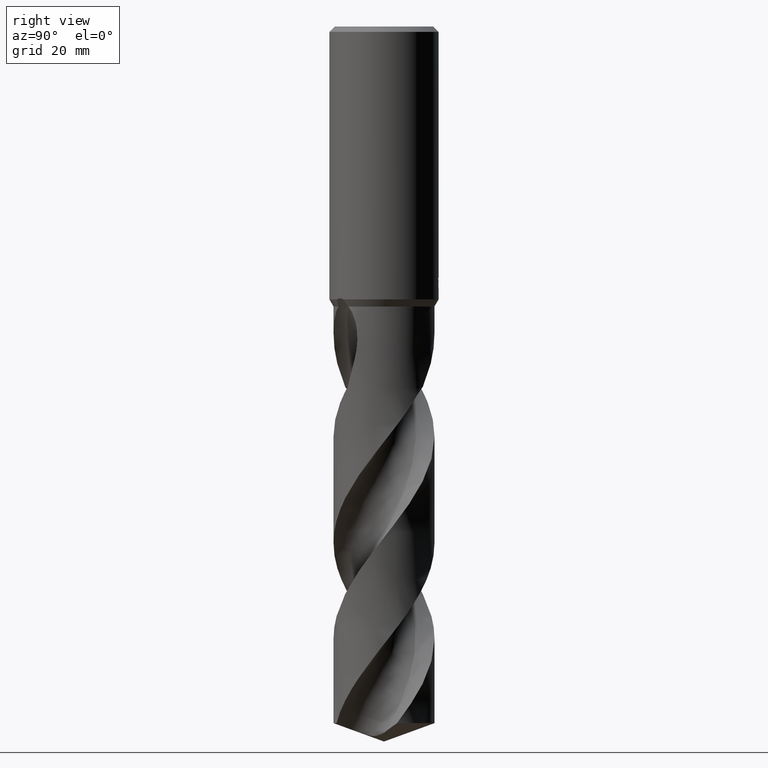
[diagram: clean part render]
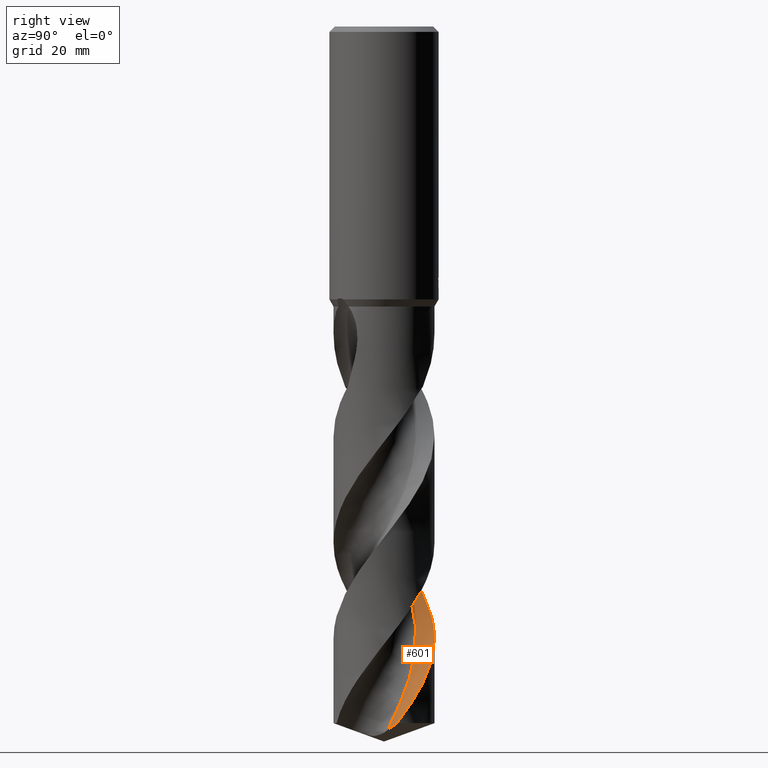
[diagram: same view with one face highlighted and labeled with its STEP entity id]
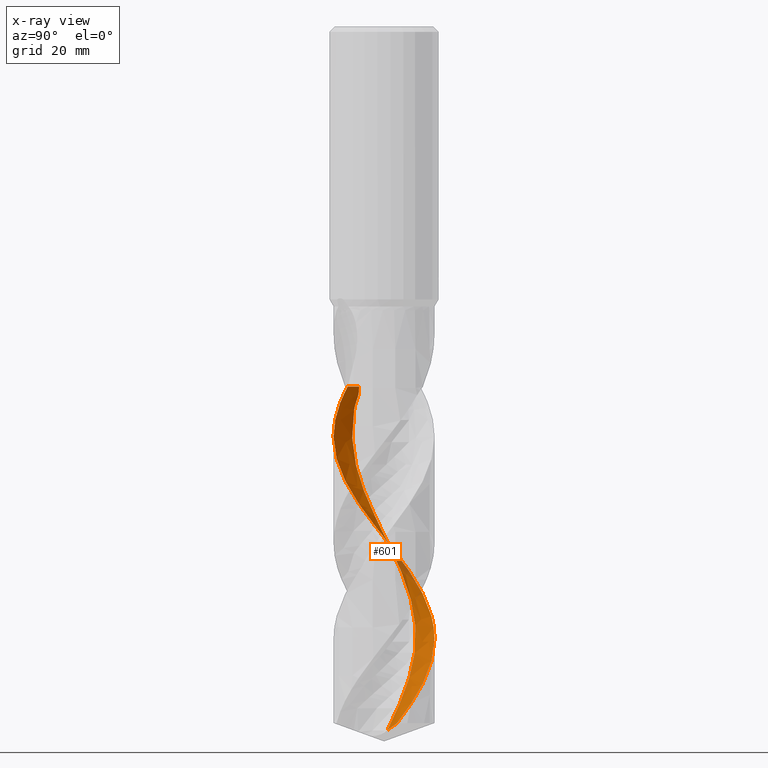
[diagram: x-ray of the same camera — body ghosted, the highlighted face saturated]
A machine part, right view. The second image highlights one B-rep face of the part: STEP entity #601.
The next image is the same camera in x-ray: the body ghosted, the highlighted face saturated — about 4% of this face is hidden behind the body in this view.
In plain terms, the highlighted face is a freeform B-spline surface patch.
Its self-contained STEP definition (entity closure, byte-faithful):
#305=VERTEX_POINT('',#838);
#431=EDGE_CURVE('',#553,#621,#977,.T.);
#439=EDGE_CURVE('',#305,#621,#985,.T.);
#453=EDGE_CURVE('',#553,#535,#1000,.T.);
#475=EDGE_CURVE('',#627,#683,#1023,.T.);
#535=VERTEX_POINT('',#1089);
#553=VERTEX_POINT('',#1109);
#575=EDGE_CURVE('',#535,#627,#1132,.T.);
#601=ADVANCED_FACE('',(#1160),#1161,.F.);
#621=VERTEX_POINT('',#1183);
#627=VERTEX_POINT('',#1189);
#683=VERTEX_POINT('',#1250);
#757=EDGE_CURVE('',#683,#305,#1334,.T.);
#838=CARTESIAN_POINT('',(8.93896769583771,2.37851981971349,-127.633275333038));
#977=B_SPLINE_CURVE_WITH_KNOTS('',3,(#3149,#3150,#3151,#3152,#3153,#3154,#3155,#3156,#3157,#3158,#3159,#3160,#3161,#3162,#3163,#3164,#3165,#3166,#3167,#3168,#3169,#3170,#3171,#3172,#3173,#3174,#3175,#3176,#3177,#3178,#3179,#3180,#3181,#3182,#3183,#3184,#3185,#3186,#3187,#3188,#3189,#3190,#3191,#3192,#3193,#3194,#3195,#3196,#3197,#3198,#3199,#3200,#3201,#3202,#3203,#3204,#3205,#3206),.UNSPECIFIED.,.F.,.F.,(4,1,2,2,2,2,2,2,1,2,1,2,1,2,1,2,1,2,1,2,1,2,1,2,1,2,1,2,1,2,1,2,1,2,2,4),(0.0,1.50676427478887,3.01352854957773,4.5202928243666,6.02705709915547,7.53382137394434,9.0405856487332,12.0541141983109,15.0676427478887,18.0811712974664,21.0946998470441,24.1082283966219,27.1217569461996,30.1352854957773,33.1488140453551,36.1623425949328,39.1758711445106,42.1893996940883,45.202928243666,48.2164567932438,51.2299853428215,54.2435138923992,57.257042441977,60.2705709915547,63.2840995411324,66.2976280907102,69.3111566402879,72.3246851898656,75.3382137394434,78.3517422890211,81.3652708385988,84.3787993881766,87.3923279377543,90.405856487332,93.4193850369098,96.4329135864875),.UNSPECIFIED.);
#985=B_SPLINE_CURVE_WITH_KNOTS('',3,(#3216,#3217,#3218,#3219,#3220,#3221),.UNSPECIFIED.,.F.,.F.,(4,2,4),(0.0,4.13826409713342,8.16068023903665),.UNSPECIFIED.);
#1000=LINE('',#3265,#3266);
#1023=B_SPLINE_CURVE_WITH_KNOTS('',3,(#3361,#3362,#3363,#3364,#3365,#3366,#3367,#3368,#3369,#3370,#3371,#3372,#3373,#3374,#3375,#3376,#3377,#3378,#3379,#3380,#3381,#3382,#3383,#3384,#3385,#3386,#3387,#3388,#3389,#3390,#3391,#3392,#3393,#3394,#3395,#3396,#3397,#3398,#3399,#3400,#3401,#3402,#3403,#3404,#3405,#3406,#3407,#3408,#3409,#3410,#3411,#3412,#3413,#3414,#3415,#3416,#3417,#3418,#3419,#3420,#3421,#3422,#3423,#3424,#3425,#3426,#3427,#3428,#3429,#3430,#3431,#3432,#3433,#3434,#3435,#3436,#3437,#3438,#3439,#3440,#3441,#3442,#3443,#3444,#3445,#3446,#3447,#3448,#3449,#3450,#3451,#3452,#3453,#3454),.UNSPECIFIED.,.F.,.F.,(4,2,2,2,2,2,2,2,2,2,2,2,2,2,2,2,2,2,2,2,2,2,2,2,2,2,2,2,2,2,2,2,2,2,2,2,2,2,2,2,2,2,2,2,2,2,4),(0.0,0.273024571154793,0.331031660485378,1.48260282648937,1.86092443431691,2.09703163324914,2.3147405109089,3.07610170071099,3.53249077285026,3.6732403228359,3.78990074541895,3.89434734868923,4.59233437014372,5.53156842979906,6.69462444418405,8.46832704598842,10.7717952926914,13.7453497324183,16.0434360334941,18.3325340668147,19.4834944879428,20.6198522190077,25.1418861533873,25.2796989694147,29.2283947835292,31.5073923951264,33.7992006469895,36.0945950058536,38.3795759335511,39.5304613585937,41.7973758015416,44.0921437055886,46.3794729188145,48.6678997445796,49.8177880744674,50.9505191550317,53.2314952368247,54.3827982190437,56.6599018182508,58.9513787169112,61.1151517383221,64.8793818204648,66.2984016296329,68.7964972361106,72.5552377199696,74.4348746528524,76.3167734187331),.UNSPECIFIED.);
#1089=CARTESIAN_POINT('',(6.42940778141164,-6.65009081206351,-65.991));
#1109=CARTESIAN_POINT('',(4.36049181960334,-4.58117485039664,-65.991));
#1132=B_SPLINE_CURVE_WITH_KNOTS('',3,(#4532,#4533,#4534,#4535,#4536,#4537,#4538,#4539,#4540,#4541,#4542,#4543,#4544,#4545,#4546,#4547,#4548,#4549,#4550,#4551,#4552,#4553,#4554,#4555,#4556,#4557,#4558,#4559,#4560,#4561,#4562,#4563,#4564,#4565,#4566,#4567,#4568,#4569,#4570,#4571,#4572,#4573,#4574,#4575,#4576,#4577,#4578,#4579,#4580,#4581,#4582,#4583,#4584,#4585,#4586,#4587,#4588,#4589,#4590,#4591,#4592,#4593,#4594,#4595,#4596,#4597,#4598,#4599,#4600,#4601,#4602,#4603,#4604,#4605,#4606,#4607,#4608,#4609,#4610,#4611,#4612,#4613,#4614,#4615,#4616,#4617,#4618,#4619,#4620,#4621,#4622,#4623,#4624,#4625),.UNSPECIFIED.,.F.,.F.,(4,2,2,2,2,2,2,2,2,2,2,2,2,2,2,2,2,2,2,2,2,2,2,2,2,2,2,2,2,2,2,2,2,2,2,2,2,2,2,2,2,2,2,2,2,2,4),(0.0,0.273024571154793,0.331031660485378,1.48260282648937,1.86092443431691,2.09703163324914,2.3147405109089,3.07610170071099,3.53249077285026,3.6732403228359,3.78990074541895,3.89434734868923,4.59233437014372,5.53156842979906,6.69462444418405,8.46832704598842,10.7717952926914,13.7453497324183,16.0434360334941,18.3325340668147,19.4834944879428,20.6198522190077,25.1418861533873,25.2796989694147,29.2283947835292,31.5073923951264,33.7992006469895,36.0945950058536,38.3795759335511,39.5304613585937,41.7973758015416,44.0921437055886,46.3794729188145,48.6678997445796,49.8177880744674,50.9505191550317,53.2314952368247,54.3827982190437,56.6599018182508,58.9513787169112,61.1151517383221,64.8793818204648,66.2984016296329,68.7964972361106,72.5552377199696,74.4348746528524,76.3167734187331),.UNSPECIFIED.);
#1160=FACE_OUTER_BOUND('',#4750,.T.);
#1161=B_SPLINE_SURFACE_WITH_KNOTS('',3,3,((#4751,#4752,#4753,#4754,#4755,#4756,#4757,#4758,#4759,#4760,#4761,#4762,#4763,#4764,#4765,#4766,#4767,#4768,#4769,#4770,#4771,#4772,#4773,#4774,#4775,#4776,#4777,#4778,#4779,#4780,#4781,#4782,#4783,#4784,#4785,#4786,#4787,#4788,#4789,#4790,#4791,#4792,#4793,#4794,#4795,#4796,#4797,#4798,#4799,#4800,#4801,#4802,#4803,#4804,#4805,#4806,#4807,#4808,#4809),(#4810,#4811,#4812,#4813,#4814,#4815,#4816,#4817,#4818,#4819,#4820,#4821,#4822,#4823,#4824,#4825,#4826,#4827,#4828,#4829,#4830,#4831,#4832,#4833,#4834,#4835,#4836,#4837,#4838,#4839,#4840,#4841,#4842,#4843,#4844,#4845,#4846,#4847,#4848,#4849,#4850,#4851,#4852,#4853,#4854,#4855,#4856,#4857,#4858,#4859,#4860,#4861,#4862,#4863,#4864,#4865,#4866,#4867,#4868),(#4869,#4870,#4871,#4872,#4873,#4874,#4875,#4876,#4877,#4878,#4879,#4880,#4881,#4882,#4883,#4884,#4885,#4886,#4887,#4888,#4889,#4890,#4891,#4892,#4893,#4894,#4895,#4896,#4897,#4898,#4899,#4900,#4901,#4902,#4903,#4904,#4905,#4906,#4907,#4908,#4909,#4910,#4911,#4912,#4913,#4914,#4915,#4916,#4917,#4918,#4919,#4920,#4921,#4922,#4923,#4924,#4925,#4926,#4927),(#4928,#4929,#4930,#4931,#4932,#4933,#4934,#4935,#4936,#4937,#4938,#4939,#4940,#4941,#4942,#4943,#4944,#4945,#4946,#4947,#4948,#4949,#4950,#4951,#4952,#4953,#4954,#4955,#4956,#4957,#4958,#4959,#4960,#4961,#4962,#4963,#4964,#4965,#4966,#4967,#4968,#4969,#4970,#4971,#4972,#4973,#4974,#4975,#4976,#4977,#4978,#4979,#4980,#4981,#4982,#4983,#4984,#4985,#4986)),.UNSPECIFIED.,.F.,.F.,.F.,(4,4),(4,1,2,2,2,2,2,2,2,2,1,2,1,2,1,2,1,2,1,2,1,2,1,2,1,2,1,2,1,2,1,2,1,2,2,4),(-8.89404923407749E-015,12.33333333),(0.0,1.50676427478887,3.01352854957773,4.5202928243666,6.02705709915547,7.53382137394434,9.0405856487332,12.0541141983109,15.0676427478887,18.0811712974664,21.0946998470441,24.1082283966219,27.1217569461996,30.1352854957773,33.1488140453551,36.1623425949328,39.1758711445106,42.1893996940883,45.202928243666,48.2164567932438,51.2299853428215,54.2435138923992,57.257042441977,60.2705709915547,63.2840995411324,66.2976280907102,69.3111566402879,72.3246851898656,75.3382137394434,78.3517422890211,81.3652708385988,84.3787993881766,87.3923279377543,90.405856487332,93.4193850369098,96.4329135864875),.UNSPECIFIED.);
#1183=CARTESIAN_POINT('',(5.79250678751205,0.656333092934829,-128.878209366275));
#1189=CARTESIAN_POINT('',(5.42355262508113E-013,-9.24993051922819,-75.0826918813478));
#1250=CARTESIAN_POINT('',(-2.54353246310814E-014,9.2499795454019,-112.162792851247));
#1334=B_SPLINE_CURVE_WITH_KNOTS('',3,(#5405,#5406,#5407,#5408,#5409,#5410,#5411,#5412,#5413,#5414,#5415,#5416,#5417,#5418,#5419,#5420,#5421,#5422,#5423,#5424,#5425,#5426,#5427,#5428,#5429,#5430,#5431,#5432,#5433,#5434,#5435,#5436,#5437,#5438,#5439,#5440,#5441,#5442,#5443,#5444,#5445,#5446,#5447,#5448,#5449,#5450,#5451,#5452,#5453,#5454,#5455,#5456,#5457,#5458,#5459,#5460,#5461,#5462,#5463,#5464,#5465,#5466,#5467,#5468,#5469,#5470,#5471,#5472,#5473,#5474,#5475,#5476,#5477,#5478,#5479,#5480,#5481,#5482,#5483,#5484,#5485,#5486,#5487,#5488,#5489,#5490,#5491,#5492,#5493,#5494,#5495,#5496,#5497,#5498),.UNSPECIFIED.,.F.,.F.,(4,2,2,2,2,2,2,2,2,2,2,2,2,2,2,2,2,2,2,2,2,2,2,2,2,2,2,2,2,2,2,2,2,2,2,2,2,2,2,2,2,2,2,2,2,2,4),(0.0,0.273024571154793,0.331031660485378,1.48260282648937,1.86092443431691,2.09703163324914,2.3147405109089,3.07610170071099,3.53249077285026,3.6732403228359,3.78990074541895,3.89434734868923,4.59233437014372,5.53156842979906,6.69462444418405,8.46832704598842,10.7717952926914,13.7453497324183,16.0434360334941,18.3325340668147,19.4834944879428,20.6198522190077,25.1418861533873,25.2796989694147,29.2283947835292,31.5073923951264,33.7992006469895,36.0945950058536,38.3795759335511,39.5304613585937,41.7973758015416,44.0921437055886,46.3794729188145,48.6678997445796,49.8177880744674,50.9505191550317,53.2314952368247,54.3827982190437,56.6599018182508,58.9513787169112,61.1151517383221,64.8793818204648,66.2984016296329,68.7964972361106,72.5552377199696,74.4348746528524,76.3167734187331),.UNSPECIFIED.);
#3149=CARTESIAN_POINT('',(4.36049181960335,-4.58117485039664,-65.991));
#3150=CARTESIAN_POINT('',(3.98459460357532,-4.55746940716539,-66.3289722237667));
#3151=CARTESIAN_POINT('',(3.37229145627536,-4.58171959007194,-67.0026720789865));
#3152=CARTESIAN_POINT('',(3.03932760816644,-4.733800996979,-67.6749212556199));
#3153=CARTESIAN_POINT('',(2.8319664083427,-4.96220815124569,-68.3529884375141));
#3154=CARTESIAN_POINT('',(2.72746533010837,-5.0744082922871,-68.6928687729809));
#3155=CARTESIAN_POINT('',(2.51304388479756,-5.29347875129189,-69.3754679697432));
#3156=CARTESIAN_POINT('',(2.37625387560852,-5.37831479440014,-69.7162883062073));
#3157=CARTESIAN_POINT('',(2.06007882371245,-5.49732675683152,-70.3936795554833));
#3158=CARTESIAN_POINT('',(1.8937065640432,-5.54442352339913,-70.7317555857331));
#3159=CARTESIAN_POINT('',(1.55070687596719,-5.61559437683723,-71.4059548698588));
#3160=CARTESIAN_POINT('',(1.3840400889845,-5.65120435966834,-71.7435655819606));
#3161=CARTESIAN_POINT('',(0.895425661241371,-5.75877594878408,-72.7592757729783));
#3162=CARTESIAN_POINT('',(0.563196071902248,-5.80145072180603,-73.4366888570342));
#3163=CARTESIAN_POINT('',(-0.0992877870004536,-5.83922461746254,-74.7926193766415));
#3164=CARTESIAN_POINT('',(-0.77228602777113,-5.80363808466616,-76.1473379397411));
#3165=CARTESIAN_POINT('',(-1.42734280459057,-5.65510314395466,-77.5007496303316));
#3166=CARTESIAN_POINT('',(-2.06397574818074,-5.46388193511608,-78.8554867114885));
#3167=CARTESIAN_POINT('',(-2.68516950536889,-5.20133094894003,-80.210522620237));
#3168=CARTESIAN_POINT('',(-3.25151600745142,-4.83842588535571,-81.5645653796791));
#3169=CARTESIAN_POINT('',(-3.78688960835953,-4.44579544617711,-82.9190360908349));
#3170=CARTESIAN_POINT('',(-4.28362793732488,-3.99064543821944,-84.2739613593625));
#3171=CARTESIAN_POINT('',(-4.69431775659611,-3.45795235274278,-85.6280431141647));
#3172=CARTESIAN_POINT('',(-5.0653163184034,-2.9070282121591,-86.9825392851021));
#3173=CARTESIAN_POINT('',(-5.37893733062004,-2.31052344037236,-88.3374619606657));
#3174=CARTESIAN_POINT('',(-5.58570243162594,-1.67046529939513,-89.6915336383457));
#3175=CARTESIAN_POINT('',(-5.74911990768934,-1.0267519547556,-91.0460391319602));
#3176=CARTESIAN_POINT('',(-5.84310349000064,-0.359451122275705,-92.4009732203509));
#3177=CARTESIAN_POINT('',(-5.82171709907748,0.312838319864537,-93.755051788875));
#3178=CARTESIAN_POINT('',(-5.75826208616793,0.973945699700024,-95.1095582928696));
#3179=CARTESIAN_POINT('',(-5.62150918401178,1.63381254620127,-96.4644896906565));
#3180=CARTESIAN_POINT('',(-5.3745330074894,2.25942981641266,-97.8185637524068));
#3181=CARTESIAN_POINT('',(-5.09175919587441,2.86032883723367,-99.1730680128093));
#3182=CARTESIAN_POINT('',(-4.74036019309555,3.43532461660744,-100.528000786431));
#3183=CARTESIAN_POINT('',(-4.29667864457885,3.94085949760309,-101.882074109032));
#3184=CARTESIAN_POINT('',(-3.82761724078931,4.4110268111286,-103.236572146132));
#3185=CARTESIAN_POINT('',(-3.30272264505755,4.83365106576114,-104.591499898587));
#3186=CARTESIAN_POINT('',(-2.71442587413616,5.15975023719825,-105.945572913124));
#3187=CARTESIAN_POINT('',(-2.11417559645739,5.44398975474154,-107.300073427211));
#3188=CARTESIAN_POINT('',(-1.47743079346325,5.66464417560461,-108.655005004126));
#3189=CARTESIAN_POINT('',(-0.813595597171417,5.77305984957365,-110.009087087067));
#3190=CARTESIAN_POINT('',(-0.152633118171326,5.8380392828764,-111.36360009087));
#3191=CARTESIAN_POINT('',(0.52122147077697,5.83085162219481,-112.718529075645));
#3192=CARTESIAN_POINT('',(1.18266897158723,5.70894255922644,-114.072588923244));
#3193=CARTESIAN_POINT('',(1.82674602050477,5.5471801853749,-115.427077057248));
#3194=CARTESIAN_POINT('',(2.45862343099108,5.31304801566034,-116.782023614604));
#3195=CARTESIAN_POINT('',(3.04010206260751,4.97479994097019,-118.136141669631));
#3196=CARTESIAN_POINT('',(3.59172695006929,4.60472008788677,-119.49068278036));
#3197=CARTESIAN_POINT('',(4.10748582066244,4.1710046949856,-120.845557797869));
#3198=CARTESIAN_POINT('',(4.54103733626556,3.65723356216192,-122.199525567929));
#3199=CARTESIAN_POINT('',(4.93607123275762,3.12397199683368,-123.553969676452));
#3200=CARTESIAN_POINT('',(5.2750811343816,2.54139177726804,-124.909118861421));
#3201=CARTESIAN_POINT('',(5.50707615591642,1.90842830833863,-126.263489860106));
#3202=CARTESIAN_POINT('',(5.69477159021581,1.26940039868607,-127.618081739226));
#3203=CARTESIAN_POINT('',(5.7582196583618,0.94001409284033,-128.295128969849));
#3204=CARTESIAN_POINT('',(5.83814486520704,0.281612871359107,-129.648426865452));
#3205=CARTESIAN_POINT('',(5.83570879420513,-0.0584343450602422,-130.325411150619));
#3206=CARTESIAN_POINT('',(5.79597371907664,-0.398291326374546,-131.001902906362));
#3216=CARTESIAN_POINT('',(12.052932992169,5.08446715854115,-126.238732315206));
#3217=CARTESIAN_POINT('',(11.164485380592,4.12264586481562,-126.672741467874));
#3218=CARTESIAN_POINT('',(10.1823381327067,3.25452907208461,-127.112595134171));
#3219=CARTESIAN_POINT('',(8.07508188322545,1.76725699230765,-127.995461816859));
#3220=CARTESIAN_POINT('',(6.96212594517602,1.14654508790173,-128.435121462741));
#3221=CARTESIAN_POINT('',(5.79250678748996,0.656333093030396,-128.878209366279));
#3265=CARTESIAN_POINT('',(4.36049181967406,-4.58117485032594,-65.991));
#3266=VECTOR('',#5853,0.999999999999999);
#3361=CARTESIAN_POINT('',(6.42940778141165,-6.65009081206351,-65.991));
#3362=CARTESIAN_POINT('',(6.39076682405634,-6.68744960566676,-66.0644417297748));
#3363=CARTESIAN_POINT('',(6.35173182905451,-6.72453847097323,-66.1378575403425));
#3364=CARTESIAN_POINT('',(6.30384815589836,-6.76924133030041,-66.2267659716144));
#3365=CARTESIAN_POINT('',(6.29543795302964,-6.77706363172523,-66.2423395509808));
#3366=CARTESIAN_POINT('',(6.11963401903102,-6.93996779494814,-66.5669778321781));
#3367=CARTESIAN_POINT('',(5.94780970081741,-7.08807918920117,-66.8664568125518));
#3368=CARTESIAN_POINT('',(5.70123359742516,-7.28443784173375,-67.2694443085441));
#3369=CARTESIAN_POINT('',(5.63945599187048,-7.33237732856655,-67.3684579483643));
#3370=CARTESIAN_POINT('',(5.53746830148222,-7.40944583962178,-67.5291905710655));
#3371=CARTESIAN_POINT('',(5.49797290484782,-7.43880093785801,-67.5907933782817));
#3372=CARTESIAN_POINT('',(5.42141319838781,-7.49475701512814,-67.7091489589977));
#3373=CARTESIAN_POINT('',(5.38444938305916,-7.52135759054086,-67.7658282603872));
#3374=CARTESIAN_POINT('',(5.21711055809,-7.63991047237628,-68.0207122747462));
#3375=CARTESIAN_POINT('',(5.08541143160744,-7.72826693462807,-68.2173171802771));
#3376=CARTESIAN_POINT('',(4.86553807607914,-7.86747139700635,-68.5436633815337));
#3377=CARTESIAN_POINT('',(4.78256006403839,-7.91818023286264,-68.6661721750956));
#3378=CARTESIAN_POINT('',(4.67328675570943,-7.98262780311984,-68.8267941513008));
#3379=CARTESIAN_POINT('',(4.64748094046008,-7.99767930418793,-68.8646750818962));
#3380=CARTESIAN_POINT('',(4.6001974644798,-8.02495230478712,-68.9339950926517));
#3381=CARTESIAN_POINT('',(4.57873547780417,-8.03721696197638,-68.9654263026939));
#3382=CARTESIAN_POINT('',(4.5379975316753,-8.06028125256694,-69.0250274597022));
#3383=CARTESIAN_POINT('',(4.5187385978129,-8.07109380313771,-69.0531796042665));
#3384=CARTESIAN_POINT('',(4.37067228562865,-8.15352841198096,-69.2694011001569));
#3385=CARTESIAN_POINT('',(4.24040084871715,-8.22202256213837,-69.4583464146528));
#3386=CARTESIAN_POINT('',(3.93170418608142,-8.37507377361207,-69.9009524337522));
#3387=CARTESIAN_POINT('',(3.75148993590437,-8.45734757898504,-70.1550922771596));
#3388=CARTESIAN_POINT('',(3.34205931555738,-8.62855876265074,-70.7231142659196));
#3389=CARTESIAN_POINT('',(3.11193480979806,-8.71421452645673,-71.03570075023));
#3390=CARTESIAN_POINT('',(2.52140682119553,-8.90755203324313,-71.826313730326));
#3391=CARTESIAN_POINT('',(2.15825784661558,-9.00241522871786,-72.3037684990265));
#3392=CARTESIAN_POINT('',(1.3132057693136,-9.16915890372144,-73.4026007437975));
#3393=CARTESIAN_POINT('',(0.82928746748418,-9.22550106753289,-74.0228767550113));
#3394=CARTESIAN_POINT('',(-0.283801753576222,-9.26685613406435,-75.4457552125324));
#3395=CARTESIAN_POINT('',(-0.912064878250316,-9.22627452588167,-76.2441708031524));
#3396=CARTESIAN_POINT('',(-2.01056427919018,-9.0418302041288,-77.6645681237576));
#3397=CARTESIAN_POINT('',(-2.48212282100772,-8.9238834558647,-78.2827572856054));
#3398=CARTESIAN_POINT('',(-3.40017096200509,-8.61589577558667,-79.519505900805));
#3399=CARTESIAN_POINT('',(-3.84572511591736,-8.42648132935819,-80.135967923052));
#3400=CARTESIAN_POINT('',(-4.49019982223628,-8.09064805950518,-81.0630493973177));
#3401=CARTESIAN_POINT('',(-4.70134915099797,-7.96980844728941,-81.3730151519972));
#3402=CARTESIAN_POINT('',(-5.11108851799182,-7.71335387883307,-81.9892975720711));
#3403=CARTESIAN_POINT('',(-5.30954707264867,-7.57810772823833,-82.2951934731249));
#3404=CARTESIAN_POINT('',(-6.27029647462281,-6.86710986662866,-83.8203981303707));
#3405=CARTESIAN_POINT('',(-6.94574728454906,-6.18314758844271,-85.0331474967474));
#3406=CARTESIAN_POINT('',(-7.52147966380323,-5.38420658963367,-86.2889953676379));
#3407=CARTESIAN_POINT('',(-7.5383934059462,-5.36050022720438,-86.3261332475674));
#3408=CARTESIAN_POINT('',(-8.03664490127193,-4.65512692084628,-87.4276500174896));
#3409=CARTESIAN_POINT('',(-8.42378851699073,-3.91128231762552,-88.4896491231463));
#3410=CARTESIAN_POINT('',(-8.86865420903824,-2.67220194145656,-90.1684884939425));
#3411=CARTESIAN_POINT('',(-8.99571132606757,-2.20692532108376,-90.7817422027468));
#3412=CARTESIAN_POINT('',(-9.17671256296242,-1.25854319937216,-92.0145812351173));
#3413=CARTESIAN_POINT('',(-9.23002902628787,-0.776462285282189,-92.6318904367884));
#3414=CARTESIAN_POINT('',(-9.26066746673416,0.192698862293298,-93.8686450224659));
#3415=CARTESIAN_POINT('',(-9.23781553455158,0.677957204400674,-94.4858564581443));
#3416=CARTESIAN_POINT('',(-9.11655893545845,1.63802205673515,-95.7212738906112));
#3417=CARTESIAN_POINT('',(-9.01865236440161,2.11160999359978,-96.3370387912603));
#3418=CARTESIAN_POINT('',(-8.8164519832906,2.80911104790455,-97.2635559984206));
#3419=CARTESIAN_POINT('',(-8.7395215943653,3.04002299565958,-97.5737037920691));
#3420=CARTESIAN_POINT('',(-8.48424049034262,3.71607085115701,-98.4951549652311));
#3421=CARTESIAN_POINT('',(-8.28039652503751,4.15044296881576,-99.1055633405911));
#3422=CARTESIAN_POINT('',(-7.80461092915903,4.98847594195842,-100.336074454677));
#3423=CARTESIAN_POINT('',(-7.53240267052628,5.39074492618231,-100.954105384355));
#3424=CARTESIAN_POINT('',(-6.92812773102199,6.1479080765673,-102.189547442201));
#3425=CARTESIAN_POINT('',(-6.59742200919863,6.50149555436925,-102.804873558285));
#3426=CARTESIAN_POINT('',(-5.8838671492694,7.15372513813675,-104.03921954402));
#3427=CARTESIAN_POINT('',(-5.50186659817137,7.45153926816099,-104.655837930788));
#3428=CARTESIAN_POINT('',(-4.89537694214336,7.85215485976413,-105.583041037769));
#3429=CARTESIAN_POINT('',(-4.68731914470896,7.97810301648814,-105.892924618384));
#3430=CARTESIAN_POINT('',(-4.26488324613361,8.21158470549876,-106.50837497959));
#3431=CARTESIAN_POINT('',(-4.05090816198395,8.31922092708054,-106.813582890695));
#3432=CARTESIAN_POINT('',(-3.39434298169794,8.61816750408486,-107.734438696893));
#3433=CARTESIAN_POINT('',(-2.94062555724905,8.78334959218754,-108.34936717241));
#3434=CARTESIAN_POINT('',(-2.24157311067685,8.97756250616905,-109.275157253498));
#3435=CARTESIAN_POINT('',(-2.00456199775105,9.0334414440914,-109.585504424986));
#3436=CARTESIAN_POINT('',(-1.29289337826041,9.17182551804445,-110.510020289331));
#3437=CARTESIAN_POINT('',(-0.813947466872962,9.22665150785057,-111.123005225425));
#3438=CARTESIAN_POINT('',(0.150778093360322,9.26141655062287,-112.355634022602));
#3439=CARTESIAN_POINT('',(0.635456918692249,9.24083965792521,-112.973025442053));
#3440=CARTESIAN_POINT('',(1.57065171535823,9.12713351007832,-114.174569733481));
#3441=CARTESIAN_POINT('',(2.0199766653484,9.03830771088738,-114.756653576847));
#3442=CARTESIAN_POINT('',(3.22768681863563,8.7050081902458,-116.35603698111));
#3443=CARTESIAN_POINT('',(3.9644033949757,8.39521292148605,-117.368022567633));
#3444=CARTESIAN_POINT('',(4.91191182051132,7.84381801974158,-118.765941009367));
#3445=CARTESIAN_POINT('',(5.16371355804937,7.68038463359206,-119.148392065952));
#3446=CARTESIAN_POINT('',(5.83545239381383,7.19642909785054,-120.205339942799));
#3447=CARTESIAN_POINT('',(6.23677429419904,6.85157681024624,-120.878510864077));
#3448=CARTESIAN_POINT('',(7.16294718255855,5.90647824254765,-122.56622365609));
#3449=CARTESIAN_POINT('',(7.64361890247175,5.26956952798252,-123.575752990166));
#3450=CARTESIAN_POINT('',(8.23348989648869,4.23436475847664,-125.097438696598));
#3451=CARTESIAN_POINT('',(8.40777850765308,3.87681946021937,-125.604080482393));
#3452=CARTESIAN_POINT('',(8.70955856408972,3.14077435112324,-126.618736488567));
#3453=CARTESIAN_POINT('',(8.83662116264935,2.76315657496487,-127.125657870131));
#3454=CARTESIAN_POINT('',(8.93896769583763,2.37851981971353,-127.633275333038));
#4532=CARTESIAN_POINT('',(6.42940778141165,-6.65009081206351,-65.991));
#4533=CARTESIAN_POINT('',(6.39076682405634,-6.68744960566676,-66.0644417297748));
#4534=CARTESIAN_POINT('',(6.35173182905451,-6.72453847097323,-66.1378575403425));
#4535=CARTESIAN_POINT('',(6.30384815589836,-6.76924133030041,-66.2267659716144));
#4536=CARTESIAN_POINT('',(6.29543795302964,-6.77706363172523,-66.2423395509808));
#4537=CARTESIAN_POINT('',(6.11963401903102,-6.93996779494814,-66.5669778321781));
#4538=CARTESIAN_POINT('',(5.94780970081741,-7.08807918920117,-66.8664568125518));
#4539=CARTESIAN_POINT('',(5.70123359742516,-7.28443784173375,-67.2694443085441));
#4540=CARTESIAN_POINT('',(5.63945599187048,-7.33237732856655,-67.3684579483643));
#4541=CARTESIAN_POINT('',(5.53746830148222,-7.40944583962178,-67.5291905710655));
#4542=CARTESIAN_POINT('',(5.49797290484782,-7.43880093785801,-67.5907933782817));
#4543=CARTESIAN_POINT('',(5.42141319838781,-7.49475701512814,-67.7091489589977));
#4544=CARTESIAN_POINT('',(5.38444938305916,-7.52135759054086,-67.7658282603872));
#4545=CARTESIAN_POINT('',(5.21711055809,-7.63991047237628,-68.0207122747462));
#4546=CARTESIAN_POINT('',(5.08541143160744,-7.72826693462807,-68.2173171802771));
#4547=CARTESIAN_POINT('',(4.86553807607914,-7.86747139700635,-68.5436633815337));
#4548=CARTESIAN_POINT('',(4.78256006403839,-7.91818023286264,-68.6661721750956));
#4549=CARTESIAN_POINT('',(4.67328675570943,-7.98262780311984,-68.8267941513008));
#4550=CARTESIAN_POINT('',(4.64748094046008,-7.99767930418793,-68.8646750818962));
#4551=CARTESIAN_POINT('',(4.6001974644798,-8.02495230478712,-68.9339950926517));
#4552=CARTESIAN_POINT('',(4.57873547780417,-8.03721696197638,-68.9654263026939));
#4553=CARTESIAN_POINT('',(4.5379975316753,-8.06028125256694,-69.0250274597022));
#4554=CARTESIAN_POINT('',(4.5187385978129,-8.07109380313771,-69.0531796042665));
#4555=CARTESIAN_POINT('',(4.37067228562865,-8.15352841198096,-69.2694011001569));
#4556=CARTESIAN_POINT('',(4.24040084871715,-8.22202256213837,-69.4583464146528));
#4557=CARTESIAN_POINT('',(3.93170418608142,-8.37507377361207,-69.9009524337522));
#4558=CARTESIAN_POINT('',(3.75148993590437,-8.45734757898504,-70.1550922771596));
#4559=CARTESIAN_POINT('',(3.34205931555738,-8.62855876265074,-70.7231142659196));
#4560=CARTESIAN_POINT('',(3.11193480979806,-8.71421452645673,-71.03570075023));
#4561=CARTESIAN_POINT('',(2.52140682119553,-8.90755203324313,-71.826313730326));
#4562=CARTESIAN_POINT('',(2.15825784661558,-9.00241522871786,-72.3037684990265));
#4563=CARTESIAN_POINT('',(1.3132057693136,-9.16915890372144,-73.4026007437975));
#4564=CARTESIAN_POINT('',(0.82928746748418,-9.22550106753289,-74.0228767550113));
#4565=CARTESIAN_POINT('',(-0.283801753576222,-9.26685613406435,-75.4457552125324));
#4566=CARTESIAN_POINT('',(-0.912064878250316,-9.22627452588167,-76.2441708031524));
#4567=CARTESIAN_POINT('',(-2.01056427919018,-9.0418302041288,-77.6645681237576));
#4568=CARTESIAN_POINT('',(-2.48212282100772,-8.9238834558647,-78.2827572856054));
#4569=CARTESIAN_POINT('',(-3.40017096200509,-8.61589577558667,-79.519505900805));
#4570=CARTESIAN_POINT('',(-3.84572511591736,-8.42648132935819,-80.135967923052));
#4571=CARTESIAN_POINT('',(-4.49019982223628,-8.09064805950518,-81.0630493973177));
#4572=CARTESIAN_POINT('',(-4.70134915099797,-7.96980844728941,-81.3730151519972));
#4573=CARTESIAN_POINT('',(-5.11108851799182,-7.71335387883307,-81.9892975720711));
#4574=CARTESIAN_POINT('',(-5.30954707264867,-7.57810772823833,-82.2951934731249));
#4575=CARTESIAN_POINT('',(-6.27029647462281,-6.86710986662866,-83.8203981303707));
#4576=CARTESIAN_POINT('',(-6.94574728454906,-6.18314758844271,-85.0331474967474));
#4577=CARTESIAN_POINT('',(-7.52147966380323,-5.38420658963367,-86.2889953676379));
#4578=CARTESIAN_POINT('',(-7.5383934059462,-5.36050022720438,-86.3261332475674));
#4579=CARTESIAN_POINT('',(-8.03664490127193,-4.65512692084628,-87.4276500174896));
#4580=CARTESIAN_POINT('',(-8.42378851699073,-3.91128231762552,-88.4896491231463));
#4581=CARTESIAN_POINT('',(-8.86865420903824,-2.67220194145656,-90.1684884939425));
#4582=CARTESIAN_POINT('',(-8.99571132606757,-2.20692532108376,-90.7817422027468));
#4583=CARTESIAN_POINT('',(-9.17671256296242,-1.25854319937216,-92.0145812351173));
#4584=CARTESIAN_POINT('',(-9.23002902628787,-0.776462285282189,-92.6318904367884));
#4585=CARTESIAN_POINT('',(-9.26066746673416,0.192698862293298,-93.8686450224659));
#4586=CARTESIAN_POINT('',(-9.23781553455158,0.677957204400674,-94.4858564581443));
#4587=CARTESIAN_POINT('',(-9.11655893545845,1.63802205673515,-95.7212738906112));
#4588=CARTESIAN_POINT('',(-9.01865236440161,2.11160999359978,-96.3370387912603));
#4589=CARTESIAN_POINT('',(-8.8164519832906,2.80911104790455,-97.2635559984206));
#4590=CARTESIAN_POINT('',(-8.7395215943653,3.04002299565958,-97.5737037920691));
#4591=CARTESIAN_POINT('',(-8.48424049034262,3.71607085115701,-98.4951549652311));
#4592=CARTESIAN_POINT('',(-8.28039652503751,4.15044296881576,-99.1055633405911));
#4593=CARTESIAN_POINT('',(-7.80461092915903,4.98847594195842,-100.336074454677));
#4594=CARTESIAN_POINT('',(-7.53240267052628,5.39074492618231,-100.954105384355));
#4595=CARTESIAN_POINT('',(-6.92812773102199,6.1479080765673,-102.189547442201));
#4596=CARTESIAN_POINT('',(-6.59742200919863,6.50149555436925,-102.804873558285));
#4597=CARTESIAN_POINT('',(-5.8838671492694,7.15372513813675,-104.03921954402));
#4598=CARTESIAN_POINT('',(-5.50186659817137,7.45153926816099,-104.655837930788));
#4599=CARTESIAN_POINT('',(-4.89537694214336,7.85215485976413,-105.583041037769));
#4600=CARTESIAN_POINT('',(-4.68731914470896,7.97810301648814,-105.892924618384));
#4601=CARTESIAN_POINT('',(-4.26488324613361,8.21158470549876,-106.50837497959));
#4602=CARTESIAN_POINT('',(-4.05090816198395,8.31922092708054,-106.813582890695));
#4603=CARTESIAN_POINT('',(-3.39434298169794,8.61816750408486,-107.734438696893));
#4604=CARTESIAN_POINT('',(-2.94062555724905,8.78334959218754,-108.34936717241));
#4605=CARTESIAN_POINT('',(-2.24157311067685,8.97756250616905,-109.275157253498));
#4606=CARTESIAN_POINT('',(-2.00456199775105,9.0334414440914,-109.585504424986));
#4607=CARTESIAN_POINT('',(-1.29289337826041,9.17182551804445,-110.510020289331));
#4608=CARTESIAN_POINT('',(-0.813947466872962,9.22665150785057,-111.123005225425));
#4609=CARTESIAN_POINT('',(0.150778093360322,9.26141655062287,-112.355634022602));
#4610=CARTESIAN_POINT('',(0.635456918692249,9.24083965792521,-112.973025442053));
#4611=CARTESIAN_POINT('',(1.57065171535823,9.12713351007832,-114.174569733481));
#4612=CARTESIAN_POINT('',(2.0199766653484,9.03830771088738,-114.756653576847));
#4613=CARTESIAN_POINT('',(3.22768681863563,8.7050081902458,-116.35603698111));
#4614=CARTESIAN_POINT('',(3.9644033949757,8.39521292148605,-117.368022567633));
#4615=CARTESIAN_POINT('',(4.91191182051132,7.84381801974158,-118.765941009367));
#4616=CARTESIAN_POINT('',(5.16371355804937,7.68038463359206,-119.148392065952));
#4617=CARTESIAN_POINT('',(5.83545239381383,7.19642909785054,-120.205339942799));
#4618=CARTESIAN_POINT('',(6.23677429419904,6.85157681024624,-120.878510864077));
#4619=CARTESIAN_POINT('',(7.16294718255855,5.90647824254765,-122.56622365609));
#4620=CARTESIAN_POINT('',(7.64361890247175,5.26956952798252,-123.575752990166));
#4621=CARTESIAN_POINT('',(8.23348989648869,4.23436475847664,-125.097438696598));
#4622=CARTESIAN_POINT('',(8.40777850765308,3.87681946021937,-125.604080482393));
#4623=CARTESIAN_POINT('',(8.70955856408972,3.14077435112324,-126.618736488567));
#4624=CARTESIAN_POINT('',(8.83662116264935,2.76315657496487,-127.125657870131));
#4625=CARTESIAN_POINT('',(8.93896769583763,2.37851981971353,-127.633275333038));
#4750=EDGE_LOOP('',(#6005,#6006,#6007,#6008,#6009,#6010));
#4751=CARTESIAN_POINT('',(4.36049181967406,-4.58117485032593,-65.991));
#4752=CARTESIAN_POINT('',(3.98459460364158,-4.55746940708575,-66.3289722237678));
#4753=CARTESIAN_POINT('',(3.37229145634829,-4.58171959000765,-67.0026720789858));
#4754=CARTESIAN_POINT('',(3.03932760824369,-4.73380099691104,-67.6749212556197));
#4755=CARTESIAN_POINT('',(2.83196640841996,-4.96220815118665,-68.3529884375139));
#4756=CARTESIAN_POINT('',(2.72746533018273,-5.07440829222727,-68.6928687729809));
#4757=CARTESIAN_POINT('',(2.51304388488976,-5.29347875124099,-69.3754679697431));
#4758=CARTESIAN_POINT('',(2.37625387569216,-5.37831479435283,-69.7162883062073));
#4759=CARTESIAN_POINT('',(2.06007882380501,-5.49732675678421,-70.3936795554833));
#4760=CARTESIAN_POINT('',(1.89370656413938,-5.54442352335479,-70.731755585733));
#4761=CARTESIAN_POINT('',(1.55070687605445,-5.61559437680182,-71.4059548698588));
#4762=CARTESIAN_POINT('',(1.38404008908368,-5.65120435964071,-71.7435655819605));
#4763=CARTESIAN_POINT('',(0.895425661327167,-5.75877594874306,-72.7592757729783));
#4764=CARTESIAN_POINT('',(0.563196072001074,-5.80145072178178,-73.436688857052));
#4765=CARTESIAN_POINT('',(-0.0992877869016278,-5.83922461745614,-74.7926193766236));
#4766=CARTESIAN_POINT('',(-0.435919902990131,-5.82109279472059,-75.4702036360251));
#4767=CARTESIAN_POINT('',(-1.09968142037653,-5.72970917065788,-76.8238188072024));
#4768=CARTESIAN_POINT('',(-1.42734280449238,-5.65510314397362,-77.5007496303316));
#4769=CARTESIAN_POINT('',(-2.06397574808255,-5.46388193513504,-78.8554867114885));
#4770=CARTESIAN_POINT('',(-2.68516950526508,-5.20133094898049,-80.2105226202548));
#4771=CARTESIAN_POINT('',(-3.25151600738323,-4.83842588539776,-81.5645653796433));
#4772=CARTESIAN_POINT('',(-3.78688960825565,-4.445795446237,-82.9190360908705));
#4773=CARTESIAN_POINT('',(-4.2836279372611,-3.99064543828537,-84.2739613593268));
#4774=CARTESIAN_POINT('',(-4.6943177565234,-3.45795235281088,-85.6280431142004));
#4775=CARTESIAN_POINT('',(-5.06531631834854,-2.90702821224505,-86.9825392850664));
#4776=CARTESIAN_POINT('',(-5.37893733057412,-2.31052344046491,-88.3374619606835));
#4777=CARTESIAN_POINT('',(-5.58570243157405,-1.67046529947132,-89.6915336383457));
#4778=CARTESIAN_POINT('',(-5.74911990767314,-1.02675195486747,-91.0460391319601));
#4779=CARTESIAN_POINT('',(-5.84310348997403,-0.359451122366713,-92.4009732203508));
#4780=CARTESIAN_POINT('',(-5.82171709907717,0.312838319764532,-93.755051788875));
#4781=CARTESIAN_POINT('',(-5.75826208616762,0.973945699600018,-95.1095582928695));
#4782=CARTESIAN_POINT('',(-5.62150918403332,1.63381254610123,-96.4644896906565));
#4783=CARTESIAN_POINT('',(-5.37453300751394,2.25942981631842,-97.8185637524068));
#4784=CARTESIAN_POINT('',(-5.09175919591679,2.86032883713942,-99.1730680128092));
#4785=CARTESIAN_POINT('',(-4.74036019314539,3.43532461651011,-100.528000786431));
#4786=CARTESIAN_POINT('',(-4.29667864463324,3.94085949754352,-101.882074109032));
#4787=CARTESIAN_POINT('',(-3.82761724086154,4.41102681103334,-103.236572146132));
#4788=CARTESIAN_POINT('',(-3.30272264512537,4.83365106570812,-104.591499898587));
#4789=CARTESIAN_POINT('',(-2.7144258742308,5.15975023713782,-105.945572913124));
#4790=CARTESIAN_POINT('',(-2.11417559653419,5.44398975469896,-107.300073427211));
#4791=CARTESIAN_POINT('',(-1.47743079357129,5.66464417555909,-108.655005004126));
#4792=CARTESIAN_POINT('',(-0.813595597251648,5.77305984956302,-110.009087087067));
#4793=CARTESIAN_POINT('',(-0.152633118287244,5.83803928284793,-111.363600090869));
#4794=CARTESIAN_POINT('',(0.521221470675516,5.83085162220123,-112.718529075645));
#4795=CARTESIAN_POINT('',(1.18266897150616,5.70894255923221,-114.072588923244));
#4796=CARTESIAN_POINT('',(1.82674602038801,5.54718018539852,-115.427077057248));
#4797=CARTESIAN_POINT('',(2.45862343091257,5.31304801569222,-116.782023614604));
#4798=CARTESIAN_POINT('',(3.04010206250151,4.97479994100849,-118.136141669631));
#4799=CARTESIAN_POINT('',(3.59172694999898,4.60472008794291,-119.49068278036));
#4800=CARTESIAN_POINT('',(4.10748582057358,4.17100469504367,-120.845557797869));
#4801=CARTESIAN_POINT('',(4.54103733619852,3.65723356223613,-122.199525567929));
#4802=CARTESIAN_POINT('',(4.93607123269059,3.12397199690789,-123.553969676452));
#4803=CARTESIAN_POINT('',(5.27508113433642,2.54139177735389,-124.909118861385));
#4804=CARTESIAN_POINT('',(5.50707615586047,1.9084283084311,-126.263489860177));
#4805=CARTESIAN_POINT('',(5.69477159019555,1.26940039877853,-127.618081739154));
#4806=CARTESIAN_POINT('',(5.75821965831342,0.94001409292013,-128.295128969849));
#4807=CARTESIAN_POINT('',(5.83814486521219,0.281612871474593,-129.648426865451));
#4808=CARTESIAN_POINT('',(5.83570879418246,-0.0584343449603523,-130.325411150761));
#4809=CARTESIAN_POINT('',(5.79597371907182,-0.398291326274656,-131.001902906362));
#4810=CARTESIAN_POINT('',(7.26748636376378,-7.48816939439739,-65.9909999999863));
#4811=CARTESIAN_POINT('',(6.8933332181181,-7.46272061434366,-66.3289249082799));
#4812=CARTESIAN_POINT('',(6.23658375348245,-7.53264103386509,-66.9999018255961));
#4813=CARTESIAN_POINT('',(5.7552196738679,-7.8230967932556,-67.6677252287997));
#4814=CARTESIAN_POINT('',(5.3369502979062,-8.22485684146004,-68.3462655654361));
#4815=CARTESIAN_POINT('',(5.12075533092475,-8.42004371021971,-68.6872010815908));
#4816=CARTESIAN_POINT('',(4.67137954535331,-8.79529484710144,-69.3740759100037));
#4817=CARTESIAN_POINT('',(4.42400009982862,-8.94504651800465,-69.7166149985413));
#4818=CARTESIAN_POINT('',(3.90231890516982,-9.17441613885224,-70.3941045466319));
#4819=CARTESIAN_POINT('',(3.63395928006236,-9.27067431602462,-70.7317504386559));
#4820=CARTESIAN_POINT('',(3.08848457384858,-9.42986405547195,-71.4035388343163));
#4821=CARTESIAN_POINT('',(2.81523519272798,-9.50696269592742,-71.7403458015392));
#4822=CARTESIAN_POINT('',(1.99082504518013,-9.72830874422164,-72.7559222988333));
#4823=CARTESIAN_POINT('',(1.42864673812039,-9.82750732710471,-73.4334632562693));
#4824=CARTESIAN_POINT('',(0.294721764154727,-9.93835538787293,-74.7905249457826));
#4825=CARTESIAN_POINT('',(-0.277066594161582,-9.93586219109684,-75.4683717079361));
#4826=CARTESIAN_POINT('',(-1.41117326818492,-9.83574391042188,-76.821284115946));
#4827=CARTESIAN_POINT('',(-1.97338743483762,-9.73672698466898,-77.4979611269995));
#4828=CARTESIAN_POINT('',(-3.07713634564614,-9.45528653688573,-78.8528845357603));
#4829=CARTESIAN_POINT('',(-4.15083718078578,-9.06361515014528,-80.2083402385858));
#4830=CARTESIAN_POINT('',(-5.14192212951056,-8.49689857309016,-81.5620222054896));
#4831=CARTESIAN_POINT('',(-6.08747174242851,-7.86125585835594,-82.916463573787));
#4832=CARTESIAN_POINT('',(-6.9671971853621,-7.13137407342423,-84.2717263775114));
#4833=CARTESIAN_POINT('',(-7.70888898032085,-6.26336650326793,-85.6254722995526));
#4834=CARTESIAN_POINT('',(-8.38373871468231,-5.34547748257431,-86.9799655361256));
#4835=CARTESIAN_POINT('',(-8.96501983402895,-4.36129103752653,-88.3352186365385));
#4836=CARTESIAN_POINT('',(-9.37019908621514,-3.29391363363513,-89.688949187151));
#4837=CARTESIAN_POINT('',(-9.69581474149998,-2.20215869329456,-91.0434576150584));
#4838=CARTESIAN_POINT('',(-9.91091795824283,-1.07954608091354,-92.3987320729011));
#4839=CARTESIAN_POINT('',(-9.93207624875933,0.0619598144826228,-93.7524751979034));
#4840=CARTESIAN_POINT('',(-9.87008471447088,1.19955529329745,-95.1069846361909));
#4841=CARTESIAN_POINT('',(-9.69367267426031,2.32889692634656,-96.4622546050718));
#4842=CARTESIAN_POINT('',(-9.32837195565894,3.41058684847076,-97.8159903086639));
#4843=CARTESIAN_POINT('',(-8.88613692664814,4.46054419754421,-99.1704945690664));
#4844=CARTESIAN_POINT('',(-8.33893357443679,5.46410043090216,-100.525769031953));
#4845=CARTESIAN_POINT('',(-7.62994103690052,6.35899129639074,-101.87949950093));
#4846=CARTESIAN_POINT('',(-6.8592262460305,7.19801977684321,-103.233997538031));
#4847=CARTESIAN_POINT('',(-6.00538859277575,7.95795049720996,-104.589259089075));
#4848=CARTESIAN_POINT('',(-5.03594976613749,8.56100267706666,-105.94299144594));
#4849=CARTESIAN_POINT('',(-4.02727084786174,9.09063858324314,-107.297491960028));
#4850=CARTESIAN_POINT('',(-2.96704912809347,9.51778378940605,-108.652761318287));
#4851=CARTESIAN_POINT('',(-1.8509631622591,9.75826479211067,-110.006509018989));
#4852=CARTESIAN_POINT('',(-0.722707191351378,9.91639702374163,-111.361033759964));
#4853=CARTESIAN_POINT('',(0.419475829031449,9.96065867630539,-112.716299797856));
#4854=CARTESIAN_POINT('',(1.55125451746353,9.81042483763958,-114.07000732525));
#4855=CARTESIAN_POINT('',(2.66671106125588,9.57861355476887,-115.424483722082));
#4856=CARTESIAN_POINT('',(3.75682501665165,9.23482217933093,-116.779773414546));
#4857=CARTESIAN_POINT('',(4.77137995489804,8.71119530083505,-118.133588297002));
#4858=CARTESIAN_POINT('',(5.74292710855629,8.11617108118734,-119.488170487833));
#4859=CARTESIAN_POINT('',(6.65303205665183,7.42461357748839,-120.843359530267));
#4860=CARTESIAN_POINT('',(7.43199008242636,6.58989677962796,-122.196888170385));
#4861=CARTESIAN_POINT('',(8.14677095007161,5.70263770840009,-123.551232512947));
#4862=CARTESIAN_POINT('',(8.76976536996069,4.74419181277325,-124.906792306073));
#4863=CARTESIAN_POINT('',(9.21773680271521,3.69407010284733,-126.26101573712));
#4864=CARTESIAN_POINT('',(9.58620669148522,2.61633825127658,-127.615736724989));
#4865=CARTESIAN_POINT('',(9.72068197339458,2.06115154115102,-128.292695867052));
#4866=CARTESIAN_POINT('',(9.90362727233987,0.93727462225995,-129.6457238077));
#4867=CARTESIAN_POINT('',(9.93107882305856,0.366856861282849,-130.323090797888));
#4868=CARTESIAN_POINT('',(9.90230516614129,-0.200123199147253,-130.999453444598));
#4869=CARTESIAN_POINT('',(10.1744809078614,-10.3951639385315,-65.9910000000137));
#4870=CARTESIAN_POINT('',(9.80207183306886,-10.3679707202224,-66.3288774741353));
#4871=CARTESIAN_POINT('',(9.1008759954903,-10.4835628596198,-66.997131641679));
#4872=CARTESIAN_POINT('',(8.47111184957365,-10.9123929270271,-67.6605291816188));
#4873=CARTESIAN_POINT('',(7.84193407742433,-11.4875051941162,-68.3395427137471));
#4874=CARTESIAN_POINT('',(7.51404528764837,-11.7656782700006,-68.6815335357583));
#4875=CARTESIAN_POINT('',(6.82971525005109,-12.2971118011756,-69.3726837047221));
#4876=CARTESIAN_POINT('',(6.47174664883635,-12.5117777997779,-69.7169420174649));
#4877=CARTESIAN_POINT('',(5.74455866188916,-12.8515059629621,-70.3945292113057));
#4878=CARTESIAN_POINT('',(5.37421184438634,-12.9969249184399,-70.7317451439076));
#4879=CARTESIAN_POINT('',(4.6262624234272,-13.2441339245119,-71.4011229463937));
#4880=CARTESIAN_POINT('',(4.24643133669813,-13.3627211190961,-71.7371259854995));
#4881=CARTESIAN_POINT('',(3.08622234918878,-13.6978413659873,-72.7525688958791));
#4882=CARTESIAN_POINT('',(2.29409588474006,-13.8535636501651,-73.4302390967685));
#4883=CARTESIAN_POINT('',(0.688732834737248,-14.0374864410647,-74.7884290739398));
#4884=CARTESIAN_POINT('',(-0.118212884407649,-14.0506314065881,-75.46653904671));
#4885=CARTESIAN_POINT('',(-1.72266551682056,-13.9417788309513,-76.8187501577547));
#4886=CARTESIAN_POINT('',(-2.51943410198318,-13.8183489400433,-77.4951727464728));
#4887=CARTESIAN_POINT('',(-4.09029490656115,-13.446693023995,-78.850282237162));
#4888=CARTESIAN_POINT('',(-5.61650531330605,-12.9258989259369,-80.2061600828228));
#4889=CARTESIAN_POINT('',(-7.03232937396659,-12.1553702256763,-81.5594747022352));
#4890=CARTESIAN_POINT('',(-8.38805275426681,-11.2767173055235,-82.9138953856546));
#4891=CARTESIAN_POINT('',(-9.65076809388243,-10.2721021398664,-84.2694881741487));
#4892=CARTESIAN_POINT('',(-10.7234580058335,-9.06878075687799,-85.6229035993126));
#4893=CARTESIAN_POINT('',(-11.7021633090641,-7.78392665004925,-86.9773896729593));
#4894=CARTESIAN_POINT('',(-12.5511016829612,-6.41205883249101,-88.3329749686251));
#4895=CARTESIAN_POINT('',(-13.154694851453,-4.91736167553963,-89.6863675382112));
#4896=CARTESIAN_POINT('',(-13.6425104645796,-3.37756572391951,-91.0408732963243));
#4897=CARTESIAN_POINT('',(-13.9787321698611,-1.79964191858173,-92.3964929974012));
#4898=CARTESIAN_POINT('',(-14.0424350229916,-0.188916640778818,-93.7498972658074));
#4899=CARTESIAN_POINT('',(-13.9819077185679,1.42516283709206,-95.1044123205617));
#4900=CARTESIAN_POINT('',(-13.765835986352,3.02398305441429,-96.4600196404686));
#4901=CARTESIAN_POINT('',(-13.2822108845564,4.56174243394457,-97.8134152818852));
#4902=CARTESIAN_POINT('',(-12.680514676539,6.06076100447667,-99.1679227086119));
#4903=CARTESIAN_POINT('',(-11.9375069783395,7.4928759408255,-100.523535108339));
#4904=CARTESIAN_POINT('',(-10.9632033651294,8.77712225819223,-101.876927647198));
#4905=CARTESIAN_POINT('',(-9.89083531523029,9.98501357944473,-103.231420175615));
#4906=CARTESIAN_POINT('',(-8.70805383515618,11.0822496523657,-104.587019542823));
#4907=CARTESIAN_POINT('',(-7.35747500516558,11.9622548325273,-105.940410205243));
#4908=CARTESIAN_POINT('',(-5.94036475234122,12.7372876962574,-107.29491026626));
#4909=CARTESIAN_POINT('',(-4.45666835363599,13.3709233483305,-108.650515547117));
#4910=CARTESIAN_POINT('',(-2.88833029228308,13.7434695601565,-110.003935348401));
#4911=CARTESIAN_POINT('',(-1.29278169940411,13.9947549392531,-111.358463032233));
#4912=CARTESIAN_POINT('',(0.317730166040508,14.09046646233,-112.714070481097));
#4913=CARTESIAN_POINT('',(1.91984054066841,13.9119054774314,-114.067430203361));
#4914=CARTESIAN_POINT('',(3.50667562487901,13.6100485628184,-115.421885911302));
#4915=CARTESIAN_POINT('',(5.05502779051135,13.1565957078623,-116.777524957706));
#4916=CARTESIAN_POINT('',(6.50265594820303,12.4475902932151,-118.131035911245));
#4917=CARTESIAN_POINT('',(7.89412916614656,11.6276224419583,-119.485657208334));
#4918=CARTESIAN_POINT('',(9.19857719246845,10.6782220655731,-120.841160949503));
#4919=CARTESIAN_POINT('',(10.3229431296621,9.52256041861898,-122.194252385598));
#4920=CARTESIAN_POINT('',(11.357470366353,8.28130299843191,-123.548493736601));
#4921=CARTESIAN_POINT('',(12.2644495520601,6.9469914157067,-124.904466395224));
#4922=CARTESIAN_POINT('',(12.9283978569424,5.4797131840484,-126.25854193843));
#4923=CARTESIAN_POINT('',(13.4776413858273,3.96327481728086,-127.613391386362));
#4924=CARTESIAN_POINT('',(13.683141886481,3.18228867202741,-128.290269504573));
#4925=CARTESIAN_POINT('',(13.9691120811525,1.59293669049266,-129.643014009935));
#4926=CARTESIAN_POINT('',(14.0264516923651,0.792147840857615,-130.320769424652));
#4927=CARTESIAN_POINT('',(14.0086366128797,-0.00195507195245914,-130.997003983478));
#4928=CARTESIAN_POINT('',(13.0814754519511,-13.302158482603,-65.991));
#4929=CARTESIAN_POINT('',(12.7108100807588,-13.2732211939071,-66.3288303420407));
#4930=CARTESIAN_POINT('',(11.9651684760178,-13.4344844868706,-66.9943613882892));
#4931=CARTESIAN_POINT('',(11.1870039151979,-14.0016890901583,-67.6533329714054));
#4932=CARTESIAN_POINT('',(10.3469179669106,-14.7501535176029,-68.3328200250626));
#4933=CARTESIAN_POINT('',(9.9073354717837,-15.1113129544197,-68.6758658443682));
#4934=CARTESIAN_POINT('',(8.98805072712133,-15.7989286306093,-69.3712916449828));
#4935=CARTESIAN_POINT('',(8.51949323975943,-16.078509706823,-69.7172685264056));
#4936=CARTESIAN_POINT('',(7.58679837646735,-16.5285951616368,-70.3949543858477));
#4937=CARTESIAN_POINT('',(7.11446456030933,-16.723175894503,-70.7317396300438));
#4938=CARTESIAN_POINT('',(6.16404012122133,-17.0584034197888,-71.3987072776379));
#4939=CARTESIAN_POINT('',(5.67762607355581,-17.2184800055628,-71.7339063884715));
#4940=CARTESIAN_POINT('',(4.18162246661499,-17.667373061106,-72.7492150549475));
#4941=CARTESIAN_POINT('',(3.15954655085938,-17.8796180547683,-73.427014229559));
#4942=CARTESIAN_POINT('',(1.0827423857936,-18.1366194122012,-74.7863339095256));
#4943=CARTESIAN_POINT('',(0.0406404244209,-18.1654011697509,-75.464707118621));
#4944=CARTESIAN_POINT('',(-2.03415736462895,-18.0478132039287,-76.8162154664983));
#4945=CARTESIAN_POINT('',(-3.06548019947491,-17.8999735143119,-77.4923857102872));
#4946=CARTESIAN_POINT('',(-5.10345403697826,-17.4380968921725,-78.8476785942873));
#4947=CARTESIAN_POINT('',(-7.08217372239999,-16.7881831271017,-80.2039791683004));
#4948=CARTESIAN_POINT('',(-8.92273549609392,-15.813843646942,-81.556930060935));
#4949=CARTESIAN_POINT('',(-10.6886348884397,-14.6921769840692,-82.9113243357176));
#4950=CARTESIAN_POINT('',(-12.3343378921634,-13.4128313251852,-84.2672517251868));
#4951=CARTESIAN_POINT('',(-13.7380281292711,-11.8741945405484,-85.6203342518113));
#4952=CARTESIAN_POINT('',(-15.0205868057577,-10.2223762871651,-86.974814456872));
#4953=CARTESIAN_POINT('',(-16.1371838196294,-8.46282624615932,-88.3307331116266));
#4954=CARTESIAN_POINT('',(-16.9391911393075,-6.54081000970344,-89.68378161987));
#4955=CARTESIAN_POINT('',(-17.5892056651931,-4.5529724623466,-91.0382932465691));
#4956=CARTESIAN_POINT('',(-18.0465459045567,-2.51973687712856,-92.394250382805));
#4957=CARTESIAN_POINT('',(-18.1527952730336,-0.439795146060727,-93.7473221419823));
#4958=CARTESIAN_POINT('',(-18.0937292465112,1.65077243078949,-95.1018371967366));
#4959=CARTESIAN_POINT('',(-17.8380000267589,3.71906725126631,-96.4577852884572));
#4960=CARTESIAN_POINT('',(-17.2360498327014,5.71289983288354,-97.8108418381424));
#4961=CARTESIAN_POINT('',(-16.4748924072704,7.66097599809483,-99.165349264869));
#4962=CARTESIAN_POINT('',(-15.5360809098108,9.52165157182424,-100.521301886714));
#4963=CARTESIAN_POINT('',(-14.2964646570368,11.1952547906127,-101.87435597339));
#4964=CARTESIAN_POINT('',(-12.9224454207591,12.7720058116814,-103.228842633221));
#4965=CARTESIAN_POINT('',(-11.41071886584,14.2065498174408,-104.584778733311));
#4966=CARTESIAN_POINT('',(-9.67899963064551,15.3635065388829,-105.937831672353));
#4967=CARTESIAN_POINT('',(-7.85345927009553,16.3839372583749,-107.292325864783));
#4968=CARTESIAN_POINT('',(-5.94628742173142,17.2240616784242,-108.648273328425));
#4969=CARTESIAN_POINT('',(-3.92569712371729,17.7286763366373,-110.001357280323));
#4970=CARTESIAN_POINT('',(-1.86285650604149,18.0731108462137,-111.355896701327));
#4971=CARTESIAN_POINT('',(0.215984891183062,18.2202740666141,-112.711841203307));
#4972=CARTESIAN_POINT('',(2.28842608662578,18.013388489412,-114.064848605367));
#4973=CARTESIAN_POINT('',(4.34664066574688,17.6414811986155,-115.419292576136));
#4974=CARTESIAN_POINT('',(6.35322974303704,17.0783706050742,-116.775274757647));
#4975=CARTESIAN_POINT('',(8.23393310702631,16.1839849194685,-118.128482538616));
#4976=CARTESIAN_POINT('',(10.0453300582771,15.139074168776,-119.483144915806));
#4977=CARTESIAN_POINT('',(11.7441230617601,13.9318309480178,-120.838961214754));
#4978=CARTESIAN_POINT('',(13.2138958758899,12.4552229024376,-122.191617922346));
#4979=CARTESIAN_POINT('',(14.5681700837341,10.8599694434974,-123.545753638803));
#4980=CARTESIAN_POINT('',(15.759134154471,9.14979126773274,-124.902139839912));
#4981=CARTESIAN_POINT('',(16.6390577702239,7.26535461167801,-126.256070749667));
#4982=CARTESIAN_POINT('',(17.3690772206902,5.31021303656552,-127.611043437904));
#4983=CARTESIAN_POINT('',(17.6456056687086,4.30342685383154,-128.287839336068));
#4984=CARTESIAN_POINT('',(18.0345930211337,2.24859770770478,-129.640308017891));
#4985=CARTESIAN_POINT('',(18.1218191537348,1.21743978067406,-130.318454940364));
#4986=CARTESIAN_POINT('',(18.1149680599492,0.196213055174944,-130.994554521713));
#5405=CARTESIAN_POINT('',(6.42940778141165,-6.65009081206351,-65.991));
#5406=CARTESIAN_POINT('',(6.39076682405634,-6.68744960566676,-66.0644417297748));
#5407=CARTESIAN_POINT('',(6.35173182905451,-6.72453847097323,-66.1378575403425));
#5408=CARTESIAN_POINT('',(6.30384815589836,-6.76924133030041,-66.2267659716144));
#5409=CARTESIAN_POINT('',(6.29543795302964,-6.77706363172523,-66.2423395509808));
#5410=CARTESIAN_POINT('',(6.11963401903102,-6.93996779494814,-66.5669778321781));
#5411=CARTESIAN_POINT('',(5.94780970081741,-7.08807918920117,-66.8664568125518));
#5412=CARTESIAN_POINT('',(5.70123359742516,-7.28443784173375,-67.2694443085441));
#5413=CARTESIAN_POINT('',(5.63945599187048,-7.33237732856655,-67.3684579483643));
#5414=CARTESIAN_POINT('',(5.53746830148222,-7.40944583962178,-67.5291905710655));
#5415=CARTESIAN_POINT('',(5.49797290484782,-7.43880093785801,-67.5907933782817));
#5416=CARTESIAN_POINT('',(5.42141319838781,-7.49475701512814,-67.7091489589977));
#5417=CARTESIAN_POINT('',(5.38444938305916,-7.52135759054086,-67.7658282603872));
#5418=CARTESIAN_POINT('',(5.21711055809,-7.63991047237628,-68.0207122747462));
#5419=CARTESIAN_POINT('',(5.08541143160744,-7.72826693462807,-68.2173171802771));
#5420=CARTESIAN_POINT('',(4.86553807607914,-7.86747139700635,-68.5436633815337));
#5421=CARTESIAN_POINT('',(4.78256006403839,-7.91818023286264,-68.6661721750956));
#5422=CARTESIAN_POINT('',(4.67328675570943,-7.98262780311984,-68.8267941513008));
#5423=CARTESIAN_POINT('',(4.64748094046008,-7.99767930418793,-68.8646750818962));
#5424=CARTESIAN_POINT('',(4.6001974644798,-8.02495230478712,-68.9339950926517));
#5425=CARTESIAN_POINT('',(4.57873547780417,-8.03721696197638,-68.9654263026939));
#5426=CARTESIAN_POINT('',(4.5379975316753,-8.06028125256694,-69.0250274597022));
#5427=CARTESIAN_POINT('',(4.5187385978129,-8.07109380313771,-69.0531796042665));
#5428=CARTESIAN_POINT('',(4.37067228562865,-8.15352841198096,-69.2694011001569));
#5429=CARTESIAN_POINT('',(4.24040084871715,-8.22202256213837,-69.4583464146528));
#5430=CARTESIAN_POINT('',(3.93170418608142,-8.37507377361207,-69.9009524337522));
#5431=CARTESIAN_POINT('',(3.75148993590437,-8.45734757898504,-70.1550922771596));
#5432=CARTESIAN_POINT('',(3.34205931555738,-8.62855876265074,-70.7231142659196));
#5433=CARTESIAN_POINT('',(3.11193480979806,-8.71421452645673,-71.03570075023));
#5434=CARTESIAN_POINT('',(2.52140682119553,-8.90755203324313,-71.826313730326));
#5435=CARTESIAN_POINT('',(2.15825784661558,-9.00241522871786,-72.3037684990265));
#5436=CARTESIAN_POINT('',(1.3132057693136,-9.16915890372144,-73.4026007437975));
#5437=CARTESIAN_POINT('',(0.82928746748418,-9.22550106753289,-74.0228767550113));
#5438=CARTESIAN_POINT('',(-0.283801753576222,-9.26685613406435,-75.4457552125324));
#5439=CARTESIAN_POINT('',(-0.912064878250316,-9.22627452588167,-76.2441708031524));
#5440=CARTESIAN_POINT('',(-2.01056427919018,-9.0418302041288,-77.6645681237576));
#5441=CARTESIAN_POINT('',(-2.48212282100772,-8.9238834558647,-78.2827572856054));
#5442=CARTESIAN_POINT('',(-3.40017096200509,-8.61589577558667,-79.519505900805));
#5443=CARTESIAN_POINT('',(-3.84572511591736,-8.42648132935819,-80.135967923052));
#5444=CARTESIAN_POINT('',(-4.49019982223628,-8.09064805950518,-81.0630493973177));
#5445=CARTESIAN_POINT('',(-4.70134915099797,-7.96980844728941,-81.3730151519972));
#5446=CARTESIAN_POINT('',(-5.11108851799182,-7.71335387883307,-81.9892975720711));
#5447=CARTESIAN_POINT('',(-5.30954707264867,-7.57810772823833,-82.2951934731249));
#5448=CARTESIAN_POINT('',(-6.27029647462281,-6.86710986662866,-83.8203981303707));
#5449=CARTESIAN_POINT('',(-6.94574728454906,-6.18314758844271,-85.0331474967474));
#5450=CARTESIAN_POINT('',(-7.52147966380323,-5.38420658963367,-86.2889953676379));
#5451=CARTESIAN_POINT('',(-7.5383934059462,-5.36050022720438,-86.3261332475674));
#5452=CARTESIAN_POINT('',(-8.03664490127193,-4.65512692084628,-87.4276500174896));
#5453=CARTESIAN_POINT('',(-8.42378851699073,-3.91128231762552,-88.4896491231463));
#5454=CARTESIAN_POINT('',(-8.86865420903824,-2.67220194145656,-90.1684884939425));
#5455=CARTESIAN_POINT('',(-8.99571132606757,-2.20692532108376,-90.7817422027468));
#5456=CARTESIAN_POINT('',(-9.17671256296242,-1.25854319937216,-92.0145812351173));
#5457=CARTESIAN_POINT('',(-9.23002902628787,-0.776462285282189,-92.6318904367884));
#5458=CARTESIAN_POINT('',(-9.26066746673416,0.192698862293298,-93.8686450224659));
#5459=CARTESIAN_POINT('',(-9.23781553455158,0.677957204400674,-94.4858564581443));
#5460=CARTESIAN_POINT('',(-9.11655893545845,1.63802205673515,-95.7212738906112));
#5461=CARTESIAN_POINT('',(-9.01865236440161,2.11160999359978,-96.3370387912603));
#5462=CARTESIAN_POINT('',(-8.8164519832906,2.80911104790455,-97.2635559984206));
#5463=CARTESIAN_POINT('',(-8.7395215943653,3.04002299565958,-97.5737037920691));
#5464=CARTESIAN_POINT('',(-8.48424049034262,3.71607085115701,-98.4951549652311));
#5465=CARTESIAN_POINT('',(-8.28039652503751,4.15044296881576,-99.1055633405911));
#5466=CARTESIAN_POINT('',(-7.80461092915903,4.98847594195842,-100.336074454677));
#5467=CARTESIAN_POINT('',(-7.53240267052628,5.39074492618231,-100.954105384355));
#5468=CARTESIAN_POINT('',(-6.92812773102199,6.1479080765673,-102.189547442201));
#5469=CARTESIAN_POINT('',(-6.59742200919863,6.50149555436925,-102.804873558285));
#5470=CARTESIAN_POINT('',(-5.8838671492694,7.15372513813675,-104.03921954402));
#5471=CARTESIAN_POINT('',(-5.50186659817137,7.45153926816099,-104.655837930788));
#5472=CARTESIAN_POINT('',(-4.89537694214336,7.85215485976413,-105.583041037769));
#5473=CARTESIAN_POINT('',(-4.68731914470896,7.97810301648814,-105.892924618384));
#5474=CARTESIAN_POINT('',(-4.26488324613361,8.21158470549876,-106.50837497959));
#5475=CARTESIAN_POINT('',(-4.05090816198395,8.31922092708054,-106.813582890695));
#5476=CARTESIAN_POINT('',(-3.39434298169794,8.61816750408486,-107.734438696893));
#5477=CARTESIAN_POINT('',(-2.94062555724905,8.78334959218754,-108.34936717241));
#5478=CARTESIAN_POINT('',(-2.24157311067685,8.97756250616905,-109.275157253498));
#5479=CARTESIAN_POINT('',(-2.00456199775105,9.0334414440914,-109.585504424986));
#5480=CARTESIAN_POINT('',(-1.29289337826041,9.17182551804445,-110.510020289331));
#5481=CARTESIAN_POINT('',(-0.813947466872962,9.22665150785057,-111.123005225425));
#5482=CARTESIAN_POINT('',(0.150778093360322,9.26141655062287,-112.355634022602));
#5483=CARTESIAN_POINT('',(0.635456918692249,9.24083965792521,-112.973025442053));
#5484=CARTESIAN_POINT('',(1.57065171535823,9.12713351007832,-114.174569733481));
#5485=CARTESIAN_POINT('',(2.0199766653484,9.03830771088738,-114.756653576847));
#5486=CARTESIAN_POINT('',(3.22768681863563,8.7050081902458,-116.35603698111));
#5487=CARTESIAN_POINT('',(3.9644033949757,8.39521292148605,-117.368022567633));
#5488=CARTESIAN_POINT('',(4.91191182051132,7.84381801974158,-118.765941009367));
#5489=CARTESIAN_POINT('',(5.16371355804937,7.68038463359206,-119.148392065952));
#5490=CARTESIAN_POINT('',(5.83545239381383,7.19642909785054,-120.205339942799));
#5491=CARTESIAN_POINT('',(6.23677429419904,6.85157681024624,-120.878510864077));
#5492=CARTESIAN_POINT('',(7.16294718255855,5.90647824254765,-122.56622365609));
#5493=CARTESIAN_POINT('',(7.64361890247175,5.26956952798252,-123.575752990166));
#5494=CARTESIAN_POINT('',(8.23348989648869,4.23436475847664,-125.097438696598));
#5495=CARTESIAN_POINT('',(8.40777850765308,3.87681946021937,-125.604080482393));
#5496=CARTESIAN_POINT('',(8.70955856408972,3.14077435112324,-126.618736488567));
#5497=CARTESIAN_POINT('',(8.83662116264935,2.76315657496487,-127.125657870131));
#5498=CARTESIAN_POINT('',(8.93896769583763,2.37851981971353,-127.633275333038));
#5853=DIRECTION('',(0.707106781186548,-0.707106781186547,0.0));
#6005=ORIENTED_EDGE('',*,*,#439,.F.);
#6006=ORIENTED_EDGE('',*,*,#757,.F.);
#6007=ORIENTED_EDGE('',*,*,#475,.F.);
#6008=ORIENTED_EDGE('',*,*,#575,.F.);
#6009=ORIENTED_EDGE('',*,*,#453,.F.);
#6010=ORIENTED_EDGE('',*,*,#431,.T.);